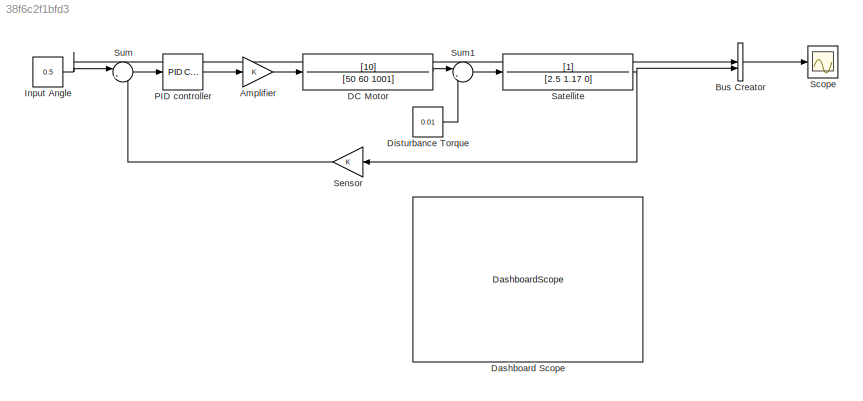
MODEL slx_38f6c2f1bfd3
KIND model
CONFIG AbsTol = auto
CONFIG EnableMultiTasking = off
CONFIG FixedStep = auto
CONFIG MaxStep = auto
CONFIG MinStep = auto
CONFIG RelTol = 1e-3
CONFIG SampleTimeConstraint = Unconstrained
CONFIG SolverName = VariableStepAuto
CONFIG StartTime = 0.0
CONFIG StopTime = 20
BLOCK [Gain] Amplifier
BLOCK [BusCreator] Bus Creator
  DisplayOption = bar
  InheritFromInputs = on
  Inputs = 2
BLOCK [TransferFcn] DC Motor
  Denominator = [50 60 1001]
  Numerator = [10]
BLOCK [DashboardScope] Dashboard Scope
BLOCK [Constant] Disturbance Torque
  Value = 0.01
BLOCK [Constant] Input Angle
  Value = 0.5
BLOCK [Reference] PID controller  REF=slpidlib/PID Controller
  LibrarySourceBlock = simulink/Continuous/PID Controller
  SourceBlock = slpidlib/PID Controller
  SourceType = PID 1dof
BLOCK [TransferFcn] Satellite
  Denominator = [2.5 1.17 0]
BLOCK [Scope] Scope
  Floating = off
  NumInputPorts = 1
  ScopeSpecificationString = Simulink.scopes.TimeScopeBlockCfg('CurrentConfiguration', extmgr.ConfigurationSet(extmgr.Configuration('Core','General UI',true),extmgr.Configuration('Core','Source UI',true),extmgr.Configuration('Sources','WiredSimulink',true),extmgr.Configuration('Visuals','Time Domain',true,'SerializedDisplays',{struct('MinYLimReal','-0.1484','MaxYLimReal','1.33557','YLabelReal','','MinYLimMag','0.00000','MaxYL...<+1512ch>
BLOCK [Gain] Sensor
BLOCK [Sum] Sum
  Inputs = |+-
BLOCK [Sum] Sum1
  Inputs = |++
LINE Amplifier:1 -> DC Motor:1
LINE Bus Creator:1 -> Scope:1
LINE DC Motor:1 -> Sum1:1
LINE Disturbance Torque:1 -> Sum1:2
NET Input Angle:1 -> Bus Creator:1, Sum:1
LINE PID controller:1 -> Amplifier:1
NET Satellite:1 -> Bus Creator:2, Sensor:1
LINE Sensor:1 -> Sum:2
LINE Sum1:1 -> Satellite:1
LINE Sum:1 -> PID controller:1
note: NET lines group one-source signal fan-out (src -> all destinations, sorted); 1:1 wires keep LINE
